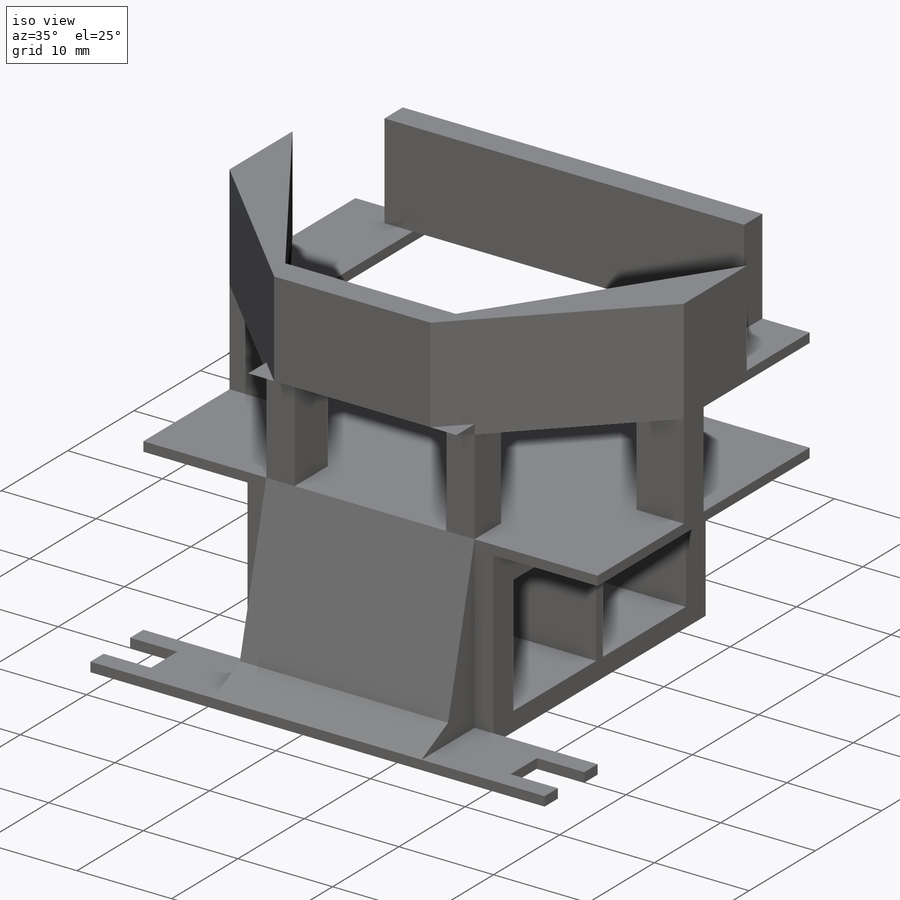
[diagram: iso view]
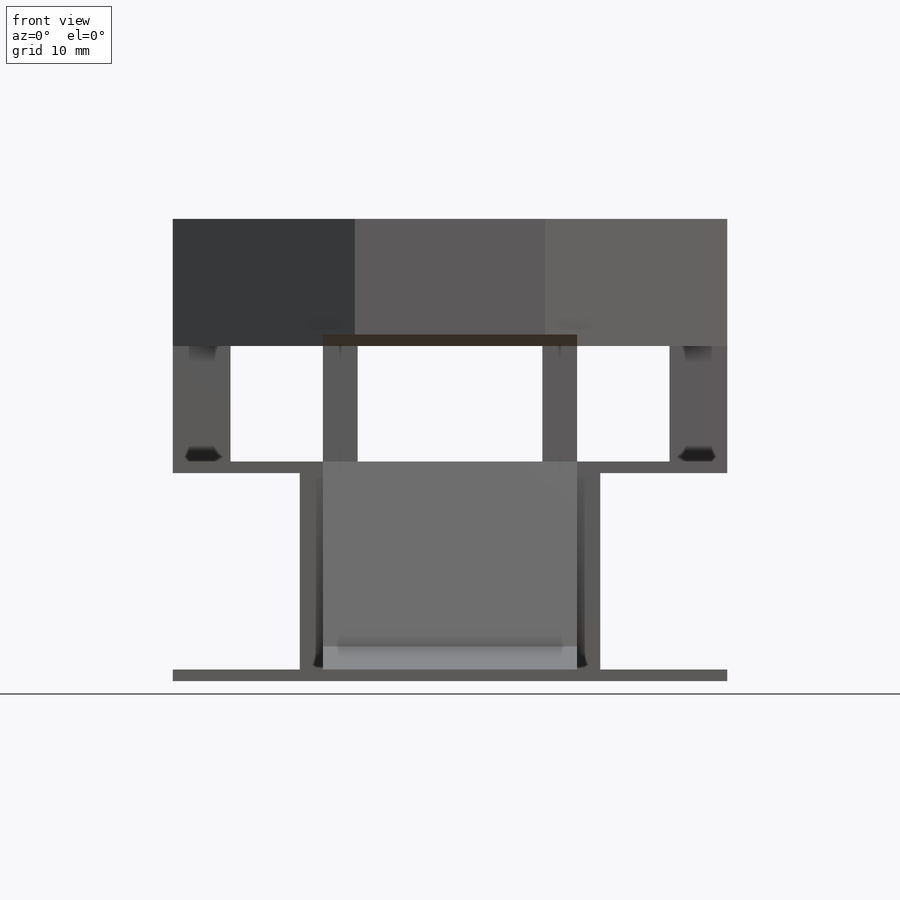
[diagram: front view]
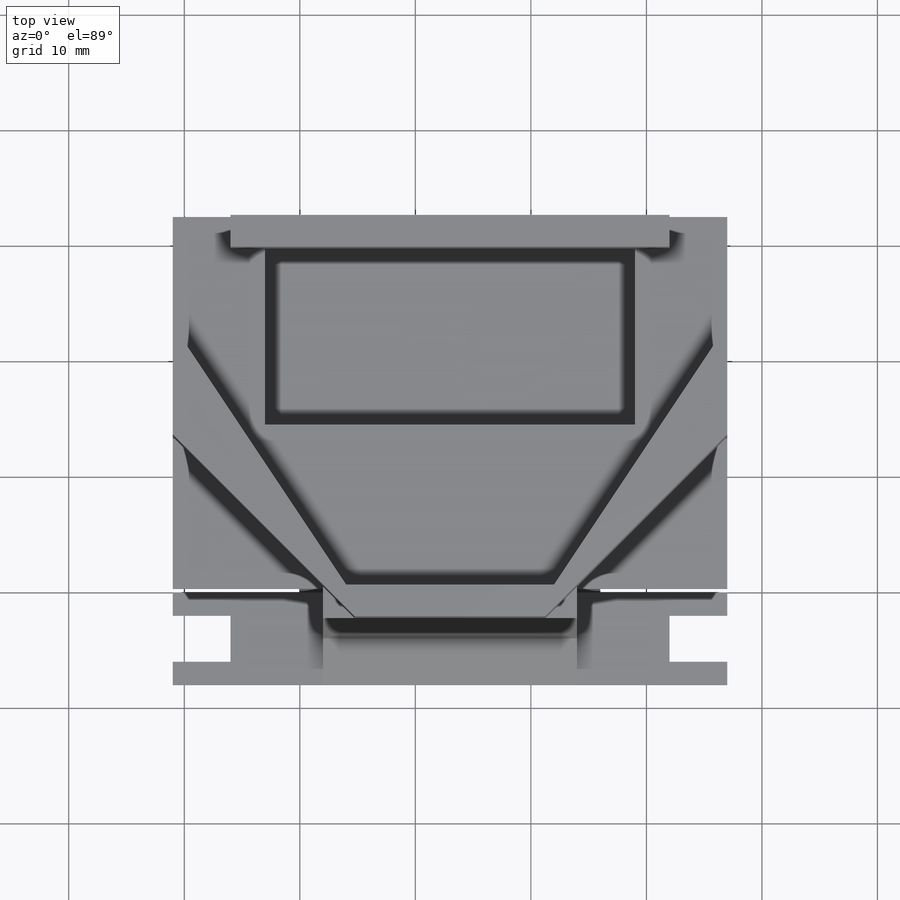
[diagram: top view]
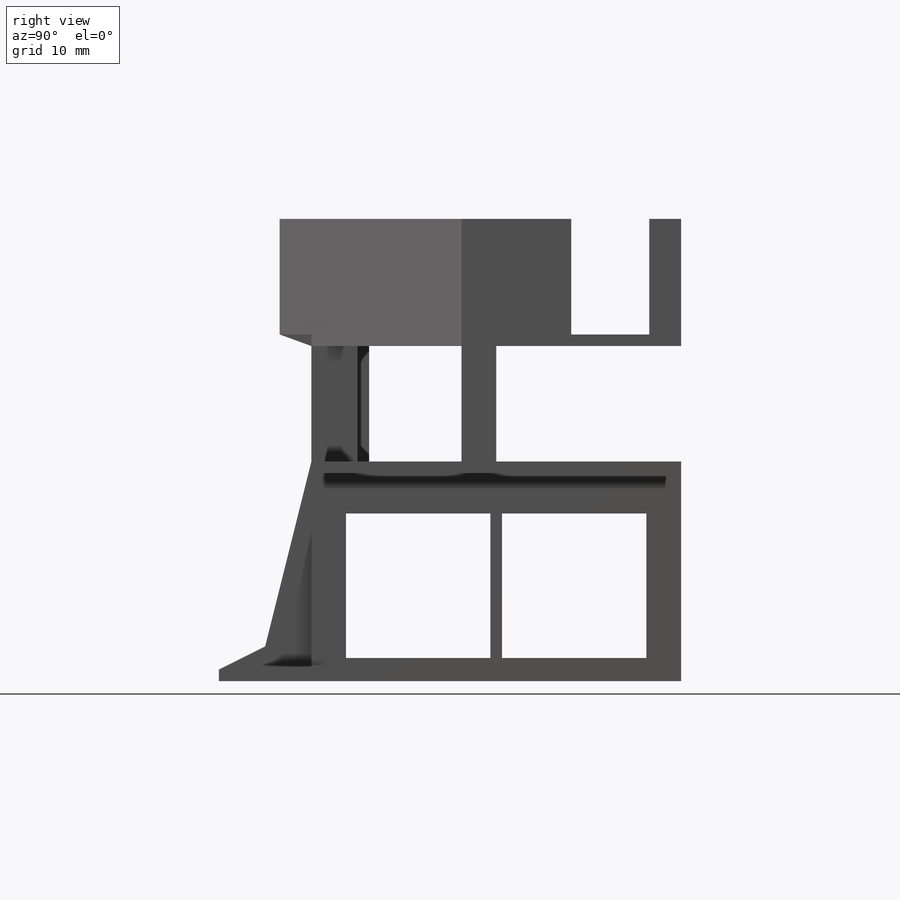
[diagram: right view]
SOLIDWORKS PART (.sldprt)
format: sldprt  version: not decoded by parser v0  size: 449,536 bytes
history: native  units: mm
features: sketch x18, extrude x13, cut_extrude x5, plane x4, material x1 (+10 scaffold rows collapsed)
feature tree (51):
  scaffold x10  (default folders/planes/origin — collapsed)
  material  "Material <not specified>"
  plane  "Ön Düzlem"
  plane  "Üst Düzlem"
  plane  "Sağ Düzlem"
  sketch  "Sketch1"  dims[D1=27.0mm D2=18.0mm]
  extrude  "Boss-Extrude1"  Depth=26mm
  sketch  "Sketch2"  dims[D1=12.5mm D2=12.5mm D3=3.0mm D4=2.0mm]
  cut_extrude  "Cut-Extrude1"  Depth=26mm
  sketch  "Sketch4"
  extrude  "Boss-Extrude2"  Depth=5mm
  sketch  "Sketch5"  dims[D1=12.5mm D2=12.5mm D3=1.0mm D4=2.0mm]
  cut_extrude  "Cut-Extrude2"  Depth=26mm
  sketch  "Sketch7"  dims[D1=1.0mm]
  extrude  "Boss-Extrude3"  Depth=8mm
  sketch  "Sketch8"  dims[c1.D1=2.0mm c1.D2=2.0mm c1.D3=5.0mm c1.D4=5.0mm c2.D1=11.0mm c2.D2=11.0mm c2.D3=50.0mm]
  extrude  "Boss-Extrude4"  [1 undecoded]
  sketch  "Sketch9"  dims[D1=2.0mm D2=2.0mm D3=5.0mm D4=5.0mm]
  cut_extrude  "Cut-Extrude4"  Depth=8mm
  sketch  "Sketch10"  dims[D1=0.0mm D2=0.0mm]
  extrude  "Boss-Extrude5"  Depth=1mm
  sketch  "Sketch12"  dims[D1=16.0mm D2=16.0mm D3=3.0mm D4=3.0mm D5=5.0mm D6=5.0mm]
  extrude  "Boss-Extrude7"  Depth=10mm
  sketch  "Sketch14"  dims[D1=5.0mm D2=3.0mm D3=3.0mm D4=4.0mm D5=16.0mm D6=13.0mm D7=13.0mm]
  extrude  "Boss-Extrude8"  Depth=10mm
  sketch  "Sketch15"
  extrude  "Boss-Extrude9"  Depth=1mm
  sketch  "Sketch17"  dims[D1=38.0mm D2=5.0mm]
  extrude  "Boss-Extrude11"  Depth=10mm
  sketch  "Sketch18"  dims[D1=32.0mm]
  extrude  "Boss-Extrude12"  Depth=10mm
  plane  "Plane1"
  sketch  "Sketch19"
  extrude  "Boss-Extrude13"  [1 undecoded]
  sketch  "Sketch21"  dims[D1=8.0mm D2=8.0mm D3=1.0mm]
  cut_extrude  "Cut-Extrude5"  Depth=1mm
  sketch  "Sketch22"  dims[D1=2.0mm D2=2.0mm]
  extrude  "Boss-Extrude14"  [1 undecoded]
  sketch  "Sketch23"  dims[D1=2.0mm D2=4.0mm]
  cut_extrude  "Cut-Extrude6"  Depth=40mm
  sketch  "Sketch25"  dims[D1=2.0mm D2=2.0mm]
  extrude  "Boss-Extrude17"  [1 undecoded]
decode coverage: 29 of 36 modeling features carry decoded parameters
note: 4 parameter values undecoded
summary: no parameter record found for 4 features
note: suppression state not decoded; provenance and decode notes live in map.json
